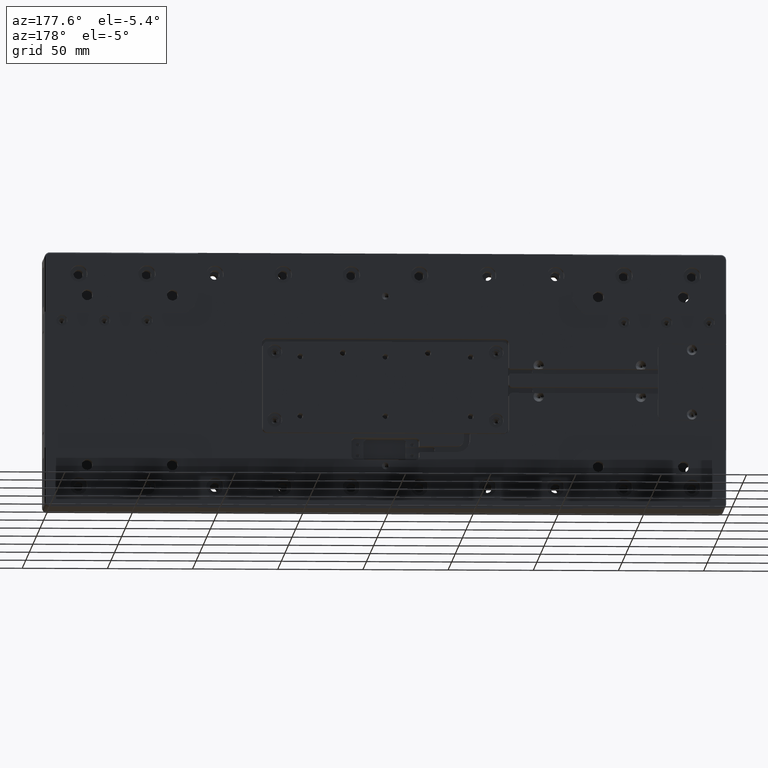
[diagram: clean part render]
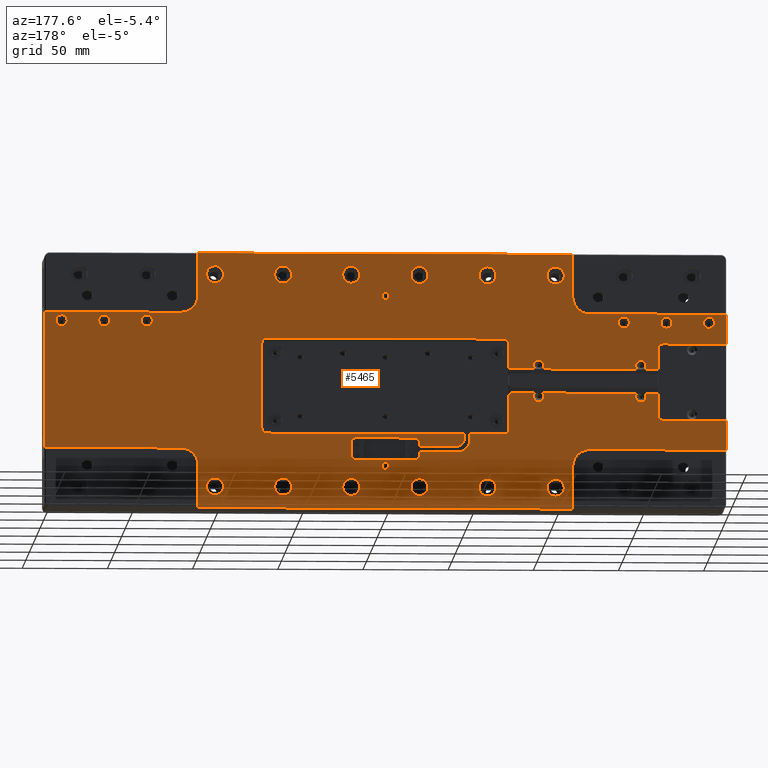
[diagram: same view with one face highlighted and labeled with its STEP entity id]
A machine part, auxiliary view. The second image highlights one B-rep face of the part: STEP entity #5465.
In plain terms, the highlighted planar face has unit normal (0, 1, 0).
Its self-contained STEP definition (entity closure, byte-faithful):
#92 = CARTESIAN_POINT ( 'NONE',  ( 17.50000000000000000, 14.50000000000000000, -46.50000000000000000 ) ) ;
#126 = CARTESIAN_POINT ( 'NONE',  ( 72.50000000000000000, 14.50000000000000000, -28.00000000000000355 ) ) ;
#204 = VERTEX_POINT ( 'NONE', #35539 ) ;
#243 = EDGE_LOOP ( 'NONE', ( #1602 ) ) ;
#285 = DIRECTION ( 'NONE',  ( -0.000000000000000000, -1.000000000000000000, -0.000000000000000000 ) ) ;
#316 = VERTEX_POINT ( 'NONE', #32314 ) ;
#326 = CARTESIAN_POINT ( 'NONE',  ( 0.000000000000000000, 14.50000000000000000, -31.00000000000000000 ) ) ;
#346 = LINE ( 'NONE', #34078, #22034 ) ;
#432 = EDGE_LOOP ( 'NONE', ( #4727 ) ) ;
#445 = CARTESIAN_POINT ( 'NONE',  ( 60.00000000000000000, 14.50000000000000178, -62.50000000000000000 ) ) ;
#454 = DIRECTION ( 'NONE',  ( -0.000000000000000000, -1.000000000000000000, -0.000000000000000000 ) ) ;
#462 = CARTESIAN_POINT ( 'NONE',  ( 140.0000000000000000, 14.49999999999999822, 35.00000000000000000 ) ) ;
#528 = VERTEX_POINT ( 'NONE', #13419 ) ;
#538 = LINE ( 'NONE', #25203, #8731 ) ;
#583 = CARTESIAN_POINT ( 'NONE',  ( -69.50000000000000000, 14.50000000000000000, -28.00000000000000000 ) ) ;
#651 = DIRECTION ( 'NONE',  ( 0.000000000000000000, 0.000000000000000000, 1.000000000000000000 ) ) ;
#682 = DIRECTION ( 'NONE',  ( -0.000000000000000000, -1.000000000000000000, -0.000000000000000000 ) ) ;
#685 = DIRECTION ( 'NONE',  ( -0.000000000000000000, -1.000000000000000000, -0.000000000000000000 ) ) ;
#780 = CIRCLE ( 'NONE', #5967, 10.00000000000000178 ) ;
#872 = VERTEX_POINT ( 'NONE', #6201 ) ;
#898 = FACE_BOUND ( 'NONE', #35328, .T. ) ;
#928 = CARTESIAN_POINT ( 'NONE',  ( -109.9999999999999858, 14.50000000004499867, -75.00000000000000000 ) ) ;
#984 = CARTESIAN_POINT ( 'NONE',  ( 100.0000000000000000, 14.50000000000000178, -62.50000000000000000 ) ) ;
#1030 = EDGE_CURVE ( 'NONE', #10047, #11987, #26122, .T. ) ;
#1077 = LINE ( 'NONE', #20409, #21368 ) ;
#1082 = CARTESIAN_POINT ( 'NONE',  ( 0.000000000000000000, 14.50000000000000000, 0.000000000000000000 ) ) ;
#1104 = ORIENTED_EDGE ( 'NONE', *, *, #26446, .T. ) ;
#1183 = CIRCLE ( 'NONE', #23773, 1.000000000000000000 ) ;
#1188 = EDGE_LOOP ( 'NONE', ( #21680 ) ) ;
#1193 = CARTESIAN_POINT ( 'NONE',  ( 20.00000000000000000, 14.50000000000000000, 0.000000000000000000 ) ) ;
#1230 = ORIENTED_EDGE ( 'NONE', *, *, #13583, .T. ) ;
#1290 = VECTOR ( 'NONE', #18855, 1000.000000000000000 ) ;
#1414 = EDGE_CURVE ( 'NONE', #21760, #16212, #37959, .T. ) ;
#1432 = ORIENTED_EDGE ( 'NONE', *, *, #21335, .T. ) ;
#1499 = ORIENTED_EDGE ( 'NONE', *, *, #35897, .T. ) ;
#1508 = VECTOR ( 'NONE', #37091, 1000.000000000000000 ) ;
#1533 = AXIS2_PLACEMENT_3D ( 'NONE', #21075, #29794, #14642 ) ;
#1602 = ORIENTED_EDGE ( 'NONE', *, *, #2476, .T. ) ;
#1733 = CARTESIAN_POINT ( 'NONE',  ( -140.0000000000000000, 14.49999999999999822, 38.25000000000000711 ) ) ;
#1743 = VERTEX_POINT ( 'NONE', #12286 ) ;
#1761 = EDGE_CURVE ( 'NONE', #9532, #38970, #31425, .T. ) ;
#1807 = EDGE_CURVE ( 'NONE', #26695, #17000, #12691, .T. ) ;
#1970 = CARTESIAN_POINT ( 'NONE',  ( -110.0000000000000000, 14.50000000000000000, 75.00000000000000000 ) ) ;
#2040 = VERTEX_POINT ( 'NONE', #33410 ) ;
#2129 = CARTESIAN_POINT ( 'NONE',  ( -49.75000000000000000, 14.50000000000000000, 0.000000000000000000 ) ) ;
#2205 = ORIENTED_EDGE ( 'NONE', *, *, #19507, .T. ) ;
#2247 = VERTEX_POINT ( 'NONE', #19440 ) ;
#2277 = EDGE_CURVE ( 'NONE', #19911, #19911, #14038, .T. ) ;
#2335 = DIRECTION ( 'NONE',  ( -1.000000000000000000, -0.000000000000000000, 0.000000000000000000 ) ) ;
#2360 = ORIENTED_EDGE ( 'NONE', *, *, #32648, .T. ) ;
#2476 = EDGE_CURVE ( 'NONE', #4581, #4581, #22429, .T. ) ;
#2498 = LINE ( 'NONE', #18636, #34707 ) ;
#2574 = CARTESIAN_POINT ( 'NONE',  ( -200.0000000000000284, 14.50000000000000000, -22.50000000000000355 ) ) ;
#2812 = VECTOR ( 'NONE', #6192, 1000.000000000000000 ) ;
#3003 = CARTESIAN_POINT ( 'NONE',  ( -17.50000000000000000, 14.50000000000000000, -44.00000000000000000 ) ) ;
#3007 = VECTOR ( 'NONE', #16376, 1000.000000000000000 ) ;
#3193 = AXIS2_PLACEMENT_3D ( 'NONE', #24342, #5978, #30207 ) ;
#3250 = DIRECTION ( 'NONE',  ( 1.000000000000000000, 0.000000000000000000, -0.000000000000000000 ) ) ;
#3284 = ORIENTED_EDGE ( 'NONE', *, *, #27691, .T. ) ;
#3301 = AXIS2_PLACEMENT_3D ( 'NONE', #19261, #682, #20218 ) ;
#3311 = EDGE_LOOP ( 'NONE', ( #17599, #4877, #28089, #8573, #35682, #28402, #20921, #13325, #15186, #37315, #32151, #11193, #35722, #38882, #15353, #14774, #13139, #17314, #22615, #28880, #28156, #2205, #13226, #7360, #22405, #25233, #4472, #17275, #2360, #28495, #15442, #1432, #1230, #31358, #39391, #34426, #7469, #16826, #9519, #14224, #1499, #25940, #28583, #9867, #36517, #35266, #27633, #17779, #34615, #15132, #5439, #1104, #11099, #31916, #39158, #13235, #30205, #18214, #8934, #37891 ) ) ;
#3369 = ORIENTED_EDGE ( 'NONE', *, *, #20462, .T. ) ;
#3433 = CARTESIAN_POINT ( 'NONE',  ( -46.25000000000000000, 14.50000000000000000, 0.000000000000000000 ) ) ;
#3509 = CARTESIAN_POINT ( 'NONE',  ( -49.75000000000000000, 14.50000000000000000, -34.00000000000000000 ) ) ;
#3625 = VECTOR ( 'NONE', #16425, 1000.000000000000000 ) ;
#3628 = DIRECTION ( 'NONE',  ( 1.000000000000000000, 0.000000000000000000, -0.000000000000000000 ) ) ;
#3655 = CIRCLE ( 'NONE', #30731, 2.500000000000002220 ) ;
#3969 = CARTESIAN_POINT ( 'NONE',  ( -20.00000000000000000, 14.50000000000000000, -38.25000000000000000 ) ) ;
#4149 = LINE ( 'NONE', #10405, #5760 ) ;
#4195 = EDGE_CURVE ( 'NONE', #39703, #39703, #29580, .T. ) ;
#4213 = CARTESIAN_POINT ( 'NONE',  ( -163.0000000000000000, 14.50000000000000000, 22.50000000000000000 ) ) ;
#4472 = ORIENTED_EDGE ( 'NONE', *, *, #39760, .T. ) ;
#4499 = AXIS2_PLACEMENT_3D ( 'NONE', #27389, #36862, #9200 ) ;
#4581 = VERTEX_POINT ( 'NONE', #16905 ) ;
#4595 = VECTOR ( 'NONE', #18468, 1000.000000000000000 ) ;
#4721 = DIRECTION ( 'NONE',  ( -0.000000000000000000, -1.000000000000000000, -0.000000000000000000 ) ) ;
#4727 = ORIENTED_EDGE ( 'NONE', *, *, #39074, .T. ) ;
#4741 = VERTEX_POINT ( 'NONE', #29094 ) ;
#4877 = ORIENTED_EDGE ( 'NONE', *, *, #29402, .T. ) ;
#4903 = EDGE_CURVE ( 'NONE', #27795, #27795, #36085, .T. ) ;
#4942 = DIRECTION ( 'NONE',  ( -0.000000000000000000, -1.000000000000000000, -0.000000000000000000 ) ) ;
#4968 = CARTESIAN_POINT ( 'NONE',  ( 0.000000000000000000, 14.50000000000000000, -40.00000000000000000 ) ) ;
#5031 = DIRECTION ( 'NONE',  ( -0.000000000000000000, 0.000000000000000000, -1.000000000000000000 ) ) ;
#5064 = AXIS2_PLACEMENT_3D ( 'NONE', #20689, #5374, #30197 ) ;
#5296 = CARTESIAN_POINT ( 'NONE',  ( 140.0000000000000000, 14.49999999999999822, 38.25000000000000711 ) ) ;
#5311 = CARTESIAN_POINT ( 'NONE',  ( -165.0000000000000000, 14.49999999999999822, 35.00000000000000000 ) ) ;
#5374 = DIRECTION ( 'NONE',  ( -0.000000000000000000, -1.000000000000000000, -0.000000000000000000 ) ) ;
#5394 = CARTESIAN_POINT ( 'NONE',  ( 69.50000000000000000, 14.50000000000000000, 25.00000000000000000 ) ) ;
#5439 = ORIENTED_EDGE ( 'NONE', *, *, #16456, .T. ) ;
#5459 = CARTESIAN_POINT ( 'NONE',  ( 0.000000000000000000, 14.50000000000000000, -50.00000000000000000 ) ) ;
#5465 = ADVANCED_FACE ( 'NONE', ( #28592, #9210, #34451, #13228, #898, #21705, #36871, #24943, #18676, #27996, #21520, #12631, #9594, #34232, #37252, #6580, #18889, #31227, #22118, #31411, #16458 ), #32610, .T. ) ;
#5528 = VERTEX_POINT ( 'NONE', #38450 ) ;
#5652 = CARTESIAN_POINT ( 'NONE',  ( 109.9999999999999858, 14.50000000004499867, 75.00000000000000000 ) ) ;
#5667 = DIRECTION ( 'NONE',  ( -1.000000000000000000, -0.000000000000000000, 0.000000000000000000 ) ) ;
#5668 = CARTESIAN_POINT ( 'NONE',  ( 200.0000000000000000, 14.50000000000000000, 40.00000000000000000 ) ) ;
#5760 = VECTOR ( 'NONE', #28796, 1000.000000000000000 ) ;
#5809 = CIRCLE ( 'NONE', #3193, 3.100000000000000533 ) ;
#5868 = VECTOR ( 'NONE', #25770, 1000.000000000000000 ) ;
#5871 = CARTESIAN_POINT ( 'NONE',  ( 0.000000000000000000, 14.50000000000000000, -40.00000000000000000 ) ) ;
#5881 = VERTEX_POINT ( 'NONE', #14035 ) ;
#5884 = DIRECTION ( 'NONE',  ( -0.000000000000000000, -1.000000000000000000, -0.000000000000000000 ) ) ;
#5967 = AXIS2_PLACEMENT_3D ( 'NONE', #34213, #15441, #24743 ) ;
#5978 = DIRECTION ( 'NONE',  ( -0.000000000000000000, -1.000000000000000000, -0.000000000000000000 ) ) ;
#6000 = CIRCLE ( 'NONE', #32425, 3.250000000000002665 ) ;
#6032 = VERTEX_POINT ( 'NONE', #3509 ) ;
#6082 = LINE ( 'NONE', #12314, #39542 ) ;
#6174 = CARTESIAN_POINT ( 'NONE',  ( 0.000000000000000000, 14.50000000000000000, 75.00000000000000000 ) ) ;
#6191 = CARTESIAN_POINT ( 'NONE',  ( 0.000000000000000000, 14.50000000000000000, -48.00000000000000000 ) ) ;
#6192 = DIRECTION ( 'NONE',  ( 1.000000000000000000, 0.000000000000000000, -0.000000000000000000 ) ) ;
#6201 = CARTESIAN_POINT ( 'NONE',  ( -60.00000000000000000, 14.50000000000000178, -57.50000000000000000 ) ) ;
#6205 = EDGE_LOOP ( 'NONE', ( #19707 ) ) ;
#6251 = EDGE_CURVE ( 'NONE', #16212, #14611, #20679, .T. ) ;
#6373 = DIRECTION ( 'NONE',  ( 0.000000000000000000, 0.000000000000000000, 1.000000000000000000 ) ) ;
#6489 = CARTESIAN_POINT ( 'NONE',  ( 0.000000000000000000, 14.50000000000000000, -31.00000000000000000 ) ) ;
#6580 = FACE_BOUND ( 'NONE', #1188, .T. ) ;
#6588 = CIRCLE ( 'NONE', #29159, 2.999999999999999112 ) ;
#6627 = CARTESIAN_POINT ( 'NONE',  ( -42.00000000000000000, 14.50000000000000000, -41.75000000000000000 ) ) ;
#6704 = CIRCLE ( 'NONE', #29282, 4.999999999999997335 ) ;
#6794 = CARTESIAN_POINT ( 'NONE',  ( 110.0000000000000000, 14.50000000000000000, 0.000000000000000000 ) ) ;
#6817 = LINE ( 'NONE', #22342, #18012 ) ;
#6829 = DIRECTION ( 'NONE',  ( 1.000000000000000000, 0.000000000000000000, -0.000000000000000000 ) ) ;
#6956 = VERTEX_POINT ( 'NONE', #9428 ) ;
#6964 = CARTESIAN_POINT ( 'NONE',  ( -72.50000000000001421, 14.50000000000000000, -28.00000000000000000 ) ) ;
#6973 = VERTEX_POINT ( 'NONE', #126 ) ;
#6976 = EDGE_CURVE ( 'NONE', #13788, #316, #15889, .T. ) ;
#6980 = AXIS2_PLACEMENT_3D ( 'NONE', #30183, #4942, #23918 ) ;
#7181 = VERTEX_POINT ( 'NONE', #38474 ) ;
#7255 = DIRECTION ( 'NONE',  ( 0.000000000000000000, -0.000000000000000000, 1.000000000000000000 ) ) ;
#7284 = CARTESIAN_POINT ( 'NONE',  ( 165.0000000000000000, 14.49999999999999822, 38.25000000000000711 ) ) ;
#7314 = VECTOR ( 'NONE', #15355, 1000.000000000000000 ) ;
#7360 = ORIENTED_EDGE ( 'NONE', *, *, #11004, .T. ) ;
#7448 = DIRECTION ( 'NONE',  ( -1.000000000000000000, -0.000000000000000000, 0.000000000000000000 ) ) ;
#7469 = ORIENTED_EDGE ( 'NONE', *, *, #6976, .T. ) ;
#7490 = EDGE_CURVE ( 'NONE', #5881, #4741, #780, .T. ) ;
#7547 = CARTESIAN_POINT ( 'NONE',  ( -200.0000000000000000, 14.50000000000000000, 0.000000000000000000 ) ) ;
#7623 = CARTESIAN_POINT ( 'NONE',  ( -72.50000000000000000, 14.50000000000000000, 0.000000000000000000 ) ) ;
#7634 = CARTESIAN_POINT ( 'NONE',  ( 20.00000000000000000, 14.50000000000000000, -36.00000000000000711 ) ) ;
#7652 = EDGE_CURVE ( 'NONE', #22449, #37892, #20134, .T. ) ;
#7689 = VERTEX_POINT ( 'NONE', #16627 ) ;
#7823 = AXIS2_PLACEMENT_3D ( 'NONE', #21022, #5884, #11743 ) ;
#7885 = VECTOR ( 'NONE', #14293, 1000.000000000000000 ) ;
#7893 = CARTESIAN_POINT ( 'NONE',  ( 17.50000000000000000, 14.50000000000000000, -33.50000000000000000 ) ) ;
#7943 = DIRECTION ( 'NONE',  ( 0.000000000000000000, 0.000000000000000000, 1.000000000000000000 ) ) ;
#8119 = VERTEX_POINT ( 'NONE', #23632 ) ;
#8125 = EDGE_LOOP ( 'NONE', ( #22932 ) ) ;
#8136 = DIRECTION ( 'NONE',  ( -0.000000000000000000, -1.000000000000000000, -0.000000000000000000 ) ) ;
#8204 = CARTESIAN_POINT ( 'NONE',  ( 17.50000000000000000, 14.50000000000000000, -44.00000000000000000 ) ) ;
#8243 = LINE ( 'NONE', #38138, #27271 ) ;
#8307 = VERTEX_POINT ( 'NONE', #928 ) ;
#8321 = VERTEX_POINT ( 'NONE', #5296 ) ;
#8509 = LINE ( 'NONE', #5871, #32301 ) ;
#8573 = ORIENTED_EDGE ( 'NONE', *, *, #7652, .T. ) ;
#8618 = LINE ( 'NONE', #4968, #24713 ) ;
#8630 = DIRECTION ( 'NONE',  ( -1.000000000000000000, -0.000000000000000000, 0.000000000000000000 ) ) ;
#8644 = EDGE_CURVE ( 'NONE', #23513, #18130, #39686, .T. ) ;
#8688 = DIRECTION ( 'NONE',  ( 0.000000000000000000, 0.000000000000000000, 1.000000000000000000 ) ) ;
#8731 = VECTOR ( 'NONE', #37729, 1000.000000000000000 ) ;
#8834 = EDGE_CURVE ( 'NONE', #30871, #26695, #23084, .T. ) ;
#8934 = ORIENTED_EDGE ( 'NONE', *, *, #25437, .T. ) ;
#8975 = EDGE_CURVE ( 'NONE', #37434, #16149, #27242, .T. ) ;
#8985 = DIRECTION ( 'NONE',  ( -0.000000000000000000, -1.000000000000000000, -0.000000000000000000 ) ) ;
#9023 = CARTESIAN_POINT ( 'NONE',  ( 72.50000000000001421, 14.50000000000000000, 22.00000000000000000 ) ) ;
#9164 = VERTEX_POINT ( 'NONE', #34408 ) ;
#9186 = DIRECTION ( 'NONE',  ( 0.000000000000000000, 0.000000000000000000, 1.000000000000000000 ) ) ;
#9190 = AXIS2_PLACEMENT_3D ( 'NONE', #22893, #22687, #25929 ) ;
#9196 = DIRECTION ( 'NONE',  ( -0.000000000000000000, 0.000000000000000000, -1.000000000000000000 ) ) ;
#9200 = DIRECTION ( 'NONE',  ( 0.000000000000000000, 0.000000000000000000, 1.000000000000000000 ) ) ;
#9206 = CARTESIAN_POINT ( 'NONE',  ( -160.0000000000000000, 14.50000000000000000, 19.50000000000000000 ) ) ;
#9210 = FACE_BOUND ( 'NONE', #243, .T. ) ;
#9279 = DIRECTION ( 'NONE',  ( 0.000000000000000000, 1.000000000000000000, 0.000000000000000000 ) ) ;
#9369 = VERTEX_POINT ( 'NONE', #18174 ) ;
#9428 = CARTESIAN_POINT ( 'NONE',  ( -152.3685438564826882, 14.50000000000000000, -6.750000000000000000 ) ) ;
#9519 = ORIENTED_EDGE ( 'NONE', *, *, #13940, .T. ) ;
#9532 = VERTEX_POINT ( 'NONE', #21790 ) ;
#9578 = EDGE_CURVE ( 'NONE', #4741, #11436, #6082, .T. ) ;
#9594 = FACE_BOUND ( 'NONE', #6205, .T. ) ;
#9599 = VECTOR ( 'NONE', #3250, 1000.000000000000000 ) ;
#9699 = VERTEX_POINT ( 'NONE', #37755 ) ;
#9784 = LINE ( 'NONE', #18465, #37941 ) ;
#9810 = DIRECTION ( 'NONE',  ( 0.000000000000000000, 0.000000000000000000, 1.000000000000000000 ) ) ;
#9867 = ORIENTED_EDGE ( 'NONE', *, *, #17910, .T. ) ;
#9962 = CARTESIAN_POINT ( 'NONE',  ( 0.000000000000000000, 14.50000000000000000, 52.00000000000000711 ) ) ;
#9990 = VECTOR ( 'NONE', #31287, 1000.000000000000000 ) ;
#10031 = CARTESIAN_POINT ( 'NONE',  ( 0.000000000000000000, 14.50000000000000000, -6.750000000000000000 ) ) ;
#10047 = VERTEX_POINT ( 'NONE', #6627 ) ;
#10129 = ORIENTED_EDGE ( 'NONE', *, *, #2277, .T. ) ;
#10188 = VERTEX_POINT ( 'NONE', #32043 ) ;
#10309 = CARTESIAN_POINT ( 'NONE',  ( 190.0000000000000000, 14.49999999999999822, 38.25000000000000711 ) ) ;
#10405 = CARTESIAN_POINT ( 'NONE',  ( -110.0000000000000000, 14.50000000000000000, 0.000000000000000000 ) ) ;
#10545 = CARTESIAN_POINT ( 'NONE',  ( -160.0000000000000000, 14.50000000000000000, -19.50000000000000000 ) ) ;
#10572 = AXIS2_PLACEMENT_3D ( 'NONE', #19959, #34934, #16744 ) ;
#10591 = DIRECTION ( 'NONE',  ( 0.000000000000000000, -0.000000000000000000, 1.000000000000000000 ) ) ;
#10609 = CARTESIAN_POINT ( 'NONE',  ( -69.50000000000000000, 14.50000000000000000, -31.00000000000000000 ) ) ;
#10675 = DIRECTION ( 'NONE',  ( 0.000000000000000000, -0.000000000000000000, 1.000000000000000000 ) ) ;
#10756 = CARTESIAN_POINT ( 'NONE',  ( 17.50000000000000000, 14.50000000000000000, -36.00000000000000711 ) ) ;
#10761 = DIRECTION ( 'NONE',  ( -0.000000000000000000, -1.000000000000000000, -0.000000000000000000 ) ) ;
#10956 = DIRECTION ( 'NONE',  ( 0.000000000000000000, 0.000000000000000000, 1.000000000000000000 ) ) ;
#10970 = CARTESIAN_POINT ( 'NONE',  ( -20.00000000000000000, 14.50000000000000178, 62.50000000000000000 ) ) ;
#11004 = EDGE_CURVE ( 'NONE', #21603, #30871, #8618, .T. ) ;
#11076 = CARTESIAN_POINT ( 'NONE',  ( 110.0000000000000000, 14.49999999999999822, -50.00000000000000000 ) ) ;
#11099 = ORIENTED_EDGE ( 'NONE', *, *, #14488, .T. ) ;
#11104 = LINE ( 'NONE', #20374, #22628 ) ;
#11120 = AXIS2_PLACEMENT_3D ( 'NONE', #10970, #4721, #13393 ) ;
#11167 = VERTEX_POINT ( 'NONE', #9206 ) ;
#11193 = ORIENTED_EDGE ( 'NONE', *, *, #29657, .T. ) ;
#11239 = EDGE_CURVE ( 'NONE', #37413, #37413, #24733, .T. ) ;
#11288 = EDGE_CURVE ( 'NONE', #6973, #25500, #38791, .T. ) ;
#11325 = EDGE_CURVE ( 'NONE', #11436, #20112, #1077, .T. ) ;
#11410 = EDGE_LOOP ( 'NONE', ( #33751 ) ) ;
#11436 = VERTEX_POINT ( 'NONE', #5668 ) ;
#11460 = DIRECTION ( 'NONE',  ( 0.000000000000000000, -0.000000000000000000, 1.000000000000000000 ) ) ;
#11487 = AXIS2_PLACEMENT_3D ( 'NONE', #5311, #29960, #10956 ) ;
#11640 = EDGE_CURVE ( 'NONE', #20556, #7181, #27846, .T. ) ;
#11743 = DIRECTION ( 'NONE',  ( 0.000000000000000000, 0.000000000000000000, 1.000000000000000000 ) ) ;
#11779 = CIRCLE ( 'NONE', #22092, 3.100000000000000533 ) ;
#11850 = CARTESIAN_POINT ( 'NONE',  ( 60.00000000000000000, 14.50000000000000178, -57.50000000000000000 ) ) ;
#11910 = EDGE_CURVE ( 'NONE', #9164, #9164, #38821, .T. ) ;
#11956 = EDGE_CURVE ( 'NONE', #9369, #20556, #346, .T. ) ;
#11987 = VERTEX_POINT ( 'NONE', #15308 ) ;
#12015 = CARTESIAN_POINT ( 'NONE',  ( -17.50000000000000000, 14.50000000000000000, -36.00000000000000711 ) ) ;
#12091 = CIRCLE ( 'NONE', #15332, 4.250000000000000000 ) ;
#12154 = DIRECTION ( 'NONE',  ( -0.000000000000000000, -1.000000000000000000, -0.000000000000000000 ) ) ;
#12169 = VERTEX_POINT ( 'NONE', #33059 ) ;
#12286 = CARTESIAN_POINT ( 'NONE',  ( -92.36854385646635990, 14.50000000000000000, 7.500000000001132427 ) ) ;
#12292 = VERTEX_POINT ( 'NONE', #34698 ) ;
#12305 = VERTEX_POINT ( 'NONE', #35882 ) ;
#12314 = CARTESIAN_POINT ( 'NONE',  ( 0.000000000000000000, 14.50000000000000000, 40.00000000000000000 ) ) ;
#12466 = EDGE_CURVE ( 'NONE', #18440, #18440, #20797, .T. ) ;
#12606 = EDGE_LOOP ( 'NONE', ( #30624 ) ) ;
#12631 = FACE_BOUND ( 'NONE', #31722, .T. ) ;
#12656 = DIRECTION ( 'NONE',  ( 1.000000000000000000, 0.000000000000000000, -0.000000000000000000 ) ) ;
#12691 = LINE ( 'NONE', #15928, #23043 ) ;
#12781 = DIRECTION ( 'NONE',  ( -0.000000000000000000, -1.000000000000000000, -0.000000000000000000 ) ) ;
#12868 = AXIS2_PLACEMENT_3D ( 'NONE', #5459, #17756, #39362 ) ;
#12905 = DIRECTION ( 'NONE',  ( 0.000000000000000000, -1.000000000000000000, 0.000000000000000000 ) ) ;
#12924 = CIRCLE ( 'NONE', #14242, 3.250000000000002665 ) ;
#12942 = LINE ( 'NONE', #31338, #37398 ) ;
#12993 = CARTESIAN_POINT ( 'NONE',  ( -140.0000000000000000, 14.49999999999999822, 35.00000000000000000 ) ) ;
#13125 = DIRECTION ( 'NONE',  ( -0.000000000000000000, -1.000000000000000000, -0.000000000000000000 ) ) ;
#13139 = ORIENTED_EDGE ( 'NONE', *, *, #11325, .T. ) ;
#13225 = CARTESIAN_POINT ( 'NONE',  ( 72.50000000000000000, 14.50000000000000000, 0.000000000000000000 ) ) ;
#13226 = ORIENTED_EDGE ( 'NONE', *, *, #34047, .T. ) ;
#13228 = FACE_BOUND ( 'NONE', #14669, .T. ) ;
#13235 = ORIENTED_EDGE ( 'NONE', *, *, #19797, .T. ) ;
#13301 = CARTESIAN_POINT ( 'NONE',  ( -160.0000000000000000, 14.50000000000000000, 0.000000000000000000 ) ) ;
#13325 = ORIENTED_EDGE ( 'NONE', *, *, #13431, .T. ) ;
#13393 = DIRECTION ( 'NONE',  ( 0.000000000000000000, 0.000000000000000000, 1.000000000000000000 ) ) ;
#13412 = DIRECTION ( 'NONE',  ( 0.000000000000000000, 1.000000000000000000, 0.000000000000000000 ) ) ;
#13419 = CARTESIAN_POINT ( 'NONE',  ( 109.9999999999999858, 14.50000000000000000, -75.00000000000000000 ) ) ;
#13431 = EDGE_CURVE ( 'NONE', #32308, #5528, #27405, .T. ) ;
#13583 = EDGE_CURVE ( 'NONE', #12305, #9532, #22131, .T. ) ;
#13592 = VERTEX_POINT ( 'NONE', #21332 ) ;
#13604 = VECTOR ( 'NONE', #22494, 1000.000000000000000 ) ;
#13637 = EDGE_CURVE ( 'NONE', #30753, #5881, #27587, .T. ) ;
#13647 = EDGE_CURVE ( 'NONE', #11167, #32308, #16998, .T. ) ;
#13648 = AXIS2_PLACEMENT_3D ( 'NONE', #18940, #21568, #19121 ) ;
#13681 = CIRCLE ( 'NONE', #36258, 10.00000000000000178 ) ;
#13749 = DIRECTION ( 'NONE',  ( 0.000000000000000000, 0.000000000000000000, 1.000000000000000000 ) ) ;
#13788 = VERTEX_POINT ( 'NONE', #10609 ) ;
#13823 = CARTESIAN_POINT ( 'NONE',  ( -163.0000000000000000, 14.50000000000000000, -22.50000000000000000 ) ) ;
#13854 = CIRCLE ( 'NONE', #29978, 5.000000000000004441 ) ;
#13881 = EDGE_CURVE ( 'NONE', #17202, #17202, #29300, .T. ) ;
#13940 = EDGE_CURVE ( 'NONE', #6032, #10047, #20511, .T. ) ;
#14019 = EDGE_CURVE ( 'NONE', #38970, #35945, #2498, .T. ) ;
#14035 = CARTESIAN_POINT ( 'NONE',  ( 110.0000000000000000, 14.49999999999999822, 50.00000000000000000 ) ) ;
#14038 = CIRCLE ( 'NONE', #36598, 3.250000000000002665 ) ;
#14224 = ORIENTED_EDGE ( 'NONE', *, *, #1030, .T. ) ;
#14242 = AXIS2_PLACEMENT_3D ( 'NONE', #30295, #17769, #26468 ) ;
#14293 = DIRECTION ( 'NONE',  ( 1.000000000000000000, 0.000000000000000000, -0.000000000000000000 ) ) ;
#14313 = DIRECTION ( 'NONE',  ( 0.000000000000000000, 0.000000000000000000, 1.000000000000000000 ) ) ;
#14434 = DIRECTION ( 'NONE',  ( 0.000000000000000000, 0.000000000000000000, 1.000000000000000000 ) ) ;
#14441 = VECTOR ( 'NONE', #21403, 1000.000000000000000 ) ;
#14488 = EDGE_CURVE ( 'NONE', #7689, #31456, #34366, .T. ) ;
#14521 = LINE ( 'NONE', #14701, #20579 ) ;
#14590 = VERTEX_POINT ( 'NONE', #26499 ) ;
#14611 = VERTEX_POINT ( 'NONE', #7893 ) ;
#14642 = DIRECTION ( 'NONE',  ( 0.000000000000000000, 0.000000000000000000, 1.000000000000000000 ) ) ;
#14660 = CARTESIAN_POINT ( 'NONE',  ( 0.000000000000000000, 14.50000000000000000, -46.50000000000000000 ) ) ;
#14669 = EDGE_LOOP ( 'NONE', ( #23090 ) ) ;
#14681 = CIRCLE ( 'NONE', #38529, 2.999999999999999112 ) ;
#14701 = CARTESIAN_POINT ( 'NONE',  ( -160.0000000000000000, 14.50000000000000000, 0.000000000000000000 ) ) ;
#14761 = CARTESIAN_POINT ( 'NONE',  ( 0.000000000000000000, 14.50000000000000000, 25.00000000000000000 ) ) ;
#14774 = ORIENTED_EDGE ( 'NONE', *, *, #9578, .T. ) ;
#14816 = EDGE_CURVE ( 'NONE', #34730, #23513, #20564, .T. ) ;
#14988 = EDGE_LOOP ( 'NONE', ( #15957 ) ) ;
#15076 = LINE ( 'NONE', #16255, #13604 ) ;
#15132 = ORIENTED_EDGE ( 'NONE', *, *, #21015, .T. ) ;
#15175 = LINE ( 'NONE', #33161, #7314 ) ;
#15186 = ORIENTED_EDGE ( 'NONE', *, *, #29197, .T. ) ;
#15191 = CARTESIAN_POINT ( 'NONE',  ( 60.00000000000000000, 14.50000000000000178, 67.50000000000000000 ) ) ;
#15308 = CARTESIAN_POINT ( 'NONE',  ( -20.00000000000000000, 14.50000000000000000, -41.75000000000000000 ) ) ;
#15332 = AXIS2_PLACEMENT_3D ( 'NONE', #16081, #19106, #19298 ) ;
#15353 = ORIENTED_EDGE ( 'NONE', *, *, #7490, .T. ) ;
#15354 = DIRECTION ( 'NONE',  ( 0.000000000000000000, 0.000000000000000000, 1.000000000000000000 ) ) ;
#15355 = DIRECTION ( 'NONE',  ( -1.000000000000000000, -0.000000000000000000, 0.000000000000000000 ) ) ;
#15441 = DIRECTION ( 'NONE',  ( -0.000000000000000000, -1.000000000000000000, -0.000000000000000000 ) ) ;
#15442 = ORIENTED_EDGE ( 'NONE', *, *, #23195, .T. ) ;
#15483 = CARTESIAN_POINT ( 'NONE',  ( 20.00000000000000000, 14.50000000000000178, 67.50000000000000000 ) ) ;
#15543 = CIRCLE ( 'NONE', #35549, 2.999999999999999112 ) ;
#15568 = EDGE_CURVE ( 'NONE', #14590, #14590, #36002, .T. ) ;
#15578 = EDGE_CURVE ( 'NONE', #316, #6032, #17680, .T. ) ;
#15610 = CARTESIAN_POINT ( 'NONE',  ( 20.00000000000000000, 14.50000000000000000, -44.00000000000000000 ) ) ;
#15613 = EDGE_LOOP ( 'NONE', ( #19740 ) ) ;
#15676 = EDGE_CURVE ( 'NONE', #26894, #26894, #16018, .T. ) ;
#15732 = CARTESIAN_POINT ( 'NONE',  ( -160.0000000000000000, 14.50000000000000000, 7.500000000000000000 ) ) ;
#15842 = CARTESIAN_POINT ( 'NONE',  ( 120.0000000000000000, 14.49999999999999822, -40.00000000000000000 ) ) ;
#15889 = LINE ( 'NONE', #326, #21394 ) ;
#15902 = CARTESIAN_POINT ( 'NONE',  ( -150.0000000000000000, 14.50000000000000000, -8.750000000000000000 ) ) ;
#15928 = CARTESIAN_POINT ( 'NONE',  ( 0.000000000000000000, 14.50000000000000000, -22.50000000000000000 ) ) ;
#15957 = ORIENTED_EDGE ( 'NONE', *, *, #26950, .T. ) ;
#15973 = VERTEX_POINT ( 'NONE', #31527 ) ;
#15984 = EDGE_CURVE ( 'NONE', #8119, #29310, #1183, .T. ) ;
#15993 = CIRCLE ( 'NONE', #32754, 2.500000000000002220 ) ;
#16018 = CIRCLE ( 'NONE', #38582, 5.000000000000004441 ) ;
#16081 = CARTESIAN_POINT ( 'NONE',  ( -42.00000000000000000, 14.50000000000000000, -34.00000000000000000 ) ) ;
#16086 = VERTEX_POINT ( 'NONE', #34526 ) ;
#16149 = VERTEX_POINT ( 'NONE', #11076 ) ;
#16176 = DIRECTION ( 'NONE',  ( -1.000000000000000000, -0.000000000000000000, 0.000000000000000000 ) ) ;
#16212 = VERTEX_POINT ( 'NONE', #7634 ) ;
#16255 = CARTESIAN_POINT ( 'NONE',  ( -20.00000000000000000, 14.50000000000000000, 0.000000000000000000 ) ) ;
#16376 = DIRECTION ( 'NONE',  ( 0.000000000000000000, -0.000000000000000000, 1.000000000000000000 ) ) ;
#16425 = DIRECTION ( 'NONE',  ( 1.000000000000000000, 0.000000000000000000, -0.000000000000000000 ) ) ;
#16456 = EDGE_CURVE ( 'NONE', #2247, #204, #12091, .T. ) ;
#16458 = FACE_OUTER_BOUND ( 'NONE', #3311, .T. ) ;
#16486 = VERTEX_POINT ( 'NONE', #25388 ) ;
#16609 = CARTESIAN_POINT ( 'NONE',  ( 0.000000000000000000, 14.50000000000000000, -41.75000000000000000 ) ) ;
#16627 = CARTESIAN_POINT ( 'NONE',  ( -46.24999999999999289, 14.50000000000000000, -31.00000000000000000 ) ) ;
#16741 = DIRECTION ( 'NONE',  ( -0.000000000000000000, -1.000000000000000000, -0.000000000000000000 ) ) ;
#16744 = DIRECTION ( 'NONE',  ( 0.000000000000000000, 0.000000000000000000, 1.000000000000000000 ) ) ;
#16814 = EDGE_CURVE ( 'NONE', #36812, #2040, #3655, .T. ) ;
#16826 = ORIENTED_EDGE ( 'NONE', *, *, #15578, .T. ) ;
#16846 = DIRECTION ( 'NONE',  ( 0.000000000000000000, -0.000000000000000000, 1.000000000000000000 ) ) ;
#16905 = CARTESIAN_POINT ( 'NONE',  ( -165.0000000000000000, 14.49999999999999822, 38.25000000000000711 ) ) ;
#16928 = EDGE_CURVE ( 'NONE', #8321, #8321, #38501, .T. ) ;
#16998 = CIRCLE ( 'NONE', #39570, 2.999999999999999112 ) ;
#17000 = VERTEX_POINT ( 'NONE', #13823 ) ;
#17202 = VERTEX_POINT ( 'NONE', #29137 ) ;
#17275 = ORIENTED_EDGE ( 'NONE', *, *, #32332, .T. ) ;
#17299 = EDGE_CURVE ( 'NONE', #9699, #10188, #14681, .T. ) ;
#17314 = ORIENTED_EDGE ( 'NONE', *, *, #22129, .T. ) ;
#17599 = ORIENTED_EDGE ( 'NONE', *, *, #29200, .T. ) ;
#17680 = LINE ( 'NONE', #2129, #34732 ) ;
#17746 = CARTESIAN_POINT ( 'NONE',  ( -163.0000000000000000, 14.50000000000000000, -19.50000000000000000 ) ) ;
#17756 = DIRECTION ( 'NONE',  ( -0.000000000000000000, -1.000000000000000000, -0.000000000000000000 ) ) ;
#17769 = DIRECTION ( 'NONE',  ( -0.000000000000000000, -1.000000000000000000, -0.000000000000000000 ) ) ;
#17779 = ORIENTED_EDGE ( 'NONE', *, *, #16814, .T. ) ;
#17910 = EDGE_CURVE ( 'NONE', #18130, #21760, #15993, .T. ) ;
#17932 = DIRECTION ( 'NONE',  ( -0.000000000000000000, -1.000000000000000000, -0.000000000000000000 ) ) ;
#18005 = VERTEX_POINT ( 'NONE', #20922 ) ;
#18012 = VECTOR ( 'NONE', #28415, 1000.000000000000000 ) ;
#18090 = CARTESIAN_POINT ( 'NONE',  ( 0.000000000000000000, 14.50000000000000000, 22.50000000000000000 ) ) ;
#18130 = VERTEX_POINT ( 'NONE', #92 ) ;
#18174 = CARTESIAN_POINT ( 'NONE',  ( -200.0000000000000000, 14.50000000000000000, 40.00000000000000000 ) ) ;
#18207 = VERTEX_POINT ( 'NONE', #15191 ) ;
#18214 = ORIENTED_EDGE ( 'NONE', *, *, #17299, .T. ) ;
#18440 = VERTEX_POINT ( 'NONE', #28338 ) ;
#18465 = CARTESIAN_POINT ( 'NONE',  ( -20.00000000000000000, 14.50000000000000000, 0.000000000000000000 ) ) ;
#18468 = DIRECTION ( 'NONE',  ( 1.000000000000000000, 0.000000000000000000, -0.000000000000000000 ) ) ;
#18568 = CARTESIAN_POINT ( 'NONE',  ( -17.50000000000000000, 14.50000000000000000, -33.50000000000000000 ) ) ;
#18636 = CARTESIAN_POINT ( 'NONE',  ( -72.50000000000000000, 14.50000000000000000, 0.000000000000000000 ) ) ;
#18676 = FACE_BOUND ( 'NONE', #27306, .T. ) ;
#18689 = CARTESIAN_POINT ( 'NONE',  ( -163.0000000000000000, 14.50000000000000000, 19.50000000000000000 ) ) ;
#18855 = DIRECTION ( 'NONE',  ( -1.000000000000000000, -0.000000000000000000, 0.000000000000000000 ) ) ;
#18889 = FACE_BOUND ( 'NONE', #11410, .T. ) ;
#18891 = DIRECTION ( 'NONE',  ( 0.000000000000000000, 0.000000000000000000, 1.000000000000000000 ) ) ;
#18904 = VECTOR ( 'NONE', #24339, 1000.000000000000000 ) ;
#18940 = CARTESIAN_POINT ( 'NONE',  ( -100.0000000000000000, 14.50000000000000178, -62.50000000000000000 ) ) ;
#19106 = DIRECTION ( 'NONE',  ( 0.000000000000000000, 1.000000000000000000, 0.000000000000000000 ) ) ;
#19121 = DIRECTION ( 'NONE',  ( 0.000000000000000000, 0.000000000000000000, 1.000000000000000000 ) ) ;
#19261 = CARTESIAN_POINT ( 'NONE',  ( 0.000000000000000000, 14.50000000000000000, 50.00000000000000000 ) ) ;
#19266 = CARTESIAN_POINT ( 'NONE',  ( -60.00000000000000000, 14.50000000000000178, -62.50000000000000000 ) ) ;
#19293 = VERTEX_POINT ( 'NONE', #24628 ) ;
#19298 = DIRECTION ( 'NONE',  ( 0.000000000000000000, 0.000000000000000000, 1.000000000000000000 ) ) ;
#19350 = CARTESIAN_POINT ( 'NONE',  ( -73.50000000000000000, 14.49999999999999822, 8.500000000000000000 ) ) ;
#19440 = CARTESIAN_POINT ( 'NONE',  ( -42.00000000000000000, 14.50000000000000000, -38.25000000000000711 ) ) ;
#19507 = EDGE_CURVE ( 'NONE', #8307, #16486, #22975, .T. ) ;
#19561 = EDGE_CURVE ( 'NONE', #39954, #11167, #14521, .T. ) ;
#19565 = CARTESIAN_POINT ( 'NONE',  ( -120.0000000000000000, 14.49999999999999822, -50.00000000000000000 ) ) ;
#19598 = CARTESIAN_POINT ( 'NONE',  ( 60.00000000000000000, 14.50000000000000178, 62.50000000000000000 ) ) ;
#19707 = ORIENTED_EDGE ( 'NONE', *, *, #23765, .T. ) ;
#19737 = DIRECTION ( 'NONE',  ( -0.000000000000000000, 0.000000000000000000, -1.000000000000000000 ) ) ;
#19740 = ORIENTED_EDGE ( 'NONE', *, *, #13881, .T. ) ;
#19797 = EDGE_CURVE ( 'NONE', #25500, #39015, #34802, .T. ) ;
#19911 = VERTEX_POINT ( 'NONE', #1733 ) ;
#19959 = CARTESIAN_POINT ( 'NONE',  ( 190.0000000000000000, 14.49999999999999822, 35.00000000000000000 ) ) ;
#20112 = VERTEX_POINT ( 'NONE', #36462 ) ;
#20134 = CIRCLE ( 'NONE', #9190, 3.100000000000000533 ) ;
#20152 = AXIS2_PLACEMENT_3D ( 'NONE', #19598, #22619, #13749 ) ;
#20217 = VECTOR ( 'NONE', #10591, 1000.000000000000000 ) ;
#20218 = DIRECTION ( 'NONE',  ( 0.000000000000000000, 0.000000000000000000, 1.000000000000000000 ) ) ;
#20374 = CARTESIAN_POINT ( 'NONE',  ( 110.0000000000000000, 14.50000000000000000, 0.000000000000000000 ) ) ;
#20409 = CARTESIAN_POINT ( 'NONE',  ( 200.0000000000000000, 14.50000000000000000, 0.000000000000000000 ) ) ;
#20455 = CARTESIAN_POINT ( 'NONE',  ( -120.0000000000000000, 14.49999999999999822, -40.00000000000000000 ) ) ;
#20462 = EDGE_CURVE ( 'NONE', #22614, #22614, #12924, .T. ) ;
#20511 = CIRCLE ( 'NONE', #6980, 7.750000000000000000 ) ;
#20556 = VERTEX_POINT ( 'NONE', #30699 ) ;
#20564 = CIRCLE ( 'NONE', #32835, 2.500000000000002220 ) ;
#20569 = ORIENTED_EDGE ( 'NONE', *, *, #11239, .T. ) ;
#20579 = VECTOR ( 'NONE', #11460, 1000.000000000000000 ) ;
#20679 = CIRCLE ( 'NONE', #25215, 2.500000000000002220 ) ;
#20689 = CARTESIAN_POINT ( 'NONE',  ( 100.0000000000000000, 14.50000000000000178, 62.50000000000000000 ) ) ;
#20709 = ORIENTED_EDGE ( 'NONE', *, *, #4903, .T. ) ;
#20711 = CARTESIAN_POINT ( 'NONE',  ( -72.50000000000000000, 14.49999999999999822, -8.750000000000000000 ) ) ;
#20797 = CIRCLE ( 'NONE', #38185, 4.999999999999997335 ) ;
#20921 = ORIENTED_EDGE ( 'NONE', *, *, #13647, .T. ) ;
#20922 = CARTESIAN_POINT ( 'NONE',  ( -147.6314561435173118, 14.50000000000000000, -6.750000000000000000 ) ) ;
#21015 = EDGE_CURVE ( 'NONE', #21130, #2247, #6817, .T. ) ;
#21022 = CARTESIAN_POINT ( 'NONE',  ( 69.50000000000000000, 14.50000000000000000, -28.00000000000000000 ) ) ;
#21075 = CARTESIAN_POINT ( 'NONE',  ( -20.00000000000000000, 14.50000000000000178, -62.50000000000000000 ) ) ;
#21099 = EDGE_LOOP ( 'NONE', ( #22260 ) ) ;
#21130 = VERTEX_POINT ( 'NONE', #3969 ) ;
#21294 = DIRECTION ( 'NONE',  ( 0.000000000000000000, 0.000000000000000000, 1.000000000000000000 ) ) ;
#21332 = CARTESIAN_POINT ( 'NONE',  ( 100.0000000000000000, 14.50000000000000178, -57.50000000000000000 ) ) ;
#21335 = EDGE_CURVE ( 'NONE', #16086, #12305, #5809, .T. ) ;
#21368 = VECTOR ( 'NONE', #34821, 1000.000000000000000 ) ;
#21381 = EDGE_CURVE ( 'NONE', #21942, #21942, #34160, .T. ) ;
#21394 = VECTOR ( 'NONE', #12656, 1000.000000000000000 ) ;
#21403 = DIRECTION ( 'NONE',  ( -1.000000000000000000, -0.000000000000000000, 0.000000000000000000 ) ) ;
#21520 = FACE_BOUND ( 'NONE', #26850, .T. ) ;
#21524 = VECTOR ( 'NONE', #8630, 1000.000000000000000 ) ;
#21568 = DIRECTION ( 'NONE',  ( -0.000000000000000000, -1.000000000000000000, -0.000000000000000000 ) ) ;
#21603 = VERTEX_POINT ( 'NONE', #20455 ) ;
#21680 = ORIENTED_EDGE ( 'NONE', *, *, #4195, .T. ) ;
#21705 = FACE_BOUND ( 'NONE', #38554, .T. ) ;
#21760 = VERTEX_POINT ( 'NONE', #15610 ) ;
#21790 = CARTESIAN_POINT ( 'NONE',  ( -74.50000000000000000, 14.49999999999999822, -6.750000000000000888 ) ) ;
#21872 = CARTESIAN_POINT ( 'NONE',  ( 0.000000000000000000, 14.50000000000000000, 7.500000000000000000 ) ) ;
#21880 = CARTESIAN_POINT ( 'NONE',  ( -60.00000000000000000, 14.50000000000000178, 62.50000000000000000 ) ) ;
#21889 = DIRECTION ( 'NONE',  ( 0.000000000000000000, 0.000000000000000000, 1.000000000000000000 ) ) ;
#21942 = VERTEX_POINT ( 'NONE', #34276 ) ;
#21983 = VERTEX_POINT ( 'NONE', #10545 ) ;
#22034 = VECTOR ( 'NONE', #6829, 1000.000000000000000 ) ;
#22092 = AXIS2_PLACEMENT_3D ( 'NONE', #15902, #33892, #30665 ) ;
#22118 = FACE_BOUND ( 'NONE', #432, .T. ) ;
#22129 = EDGE_CURVE ( 'NONE', #20112, #37434, #8509, .T. ) ;
#22131 = LINE ( 'NONE', #28193, #2812 ) ;
#22260 = ORIENTED_EDGE ( 'NONE', *, *, #38332, .T. ) ;
#22340 = EDGE_CURVE ( 'NONE', #31456, #6973, #23934, .T. ) ;
#22342 = CARTESIAN_POINT ( 'NONE',  ( 0.000000000000000000, 14.50000000000000000, -38.25000000000000000 ) ) ;
#22391 = DIRECTION ( 'NONE',  ( 0.000000000000000000, 0.000000000000000000, 1.000000000000000000 ) ) ;
#22405 = ORIENTED_EDGE ( 'NONE', *, *, #8834, .T. ) ;
#22429 = CIRCLE ( 'NONE', #11487, 3.250000000000002665 ) ;
#22449 = VERTEX_POINT ( 'NONE', #28491 ) ;
#22494 = DIRECTION ( 'NONE',  ( -0.000000000000000000, 0.000000000000000000, -1.000000000000000000 ) ) ;
#22559 = CARTESIAN_POINT ( 'NONE',  ( -72.50000000000000000, 14.49999999999999822, 8.500000000000001776 ) ) ;
#22614 = VERTEX_POINT ( 'NONE', #7284 ) ;
#22615 = ORIENTED_EDGE ( 'NONE', *, *, #8975, .T. ) ;
#22619 = DIRECTION ( 'NONE',  ( -0.000000000000000000, -1.000000000000000000, -0.000000000000000000 ) ) ;
#22628 = VECTOR ( 'NONE', #5031, 1000.000000000000000 ) ;
#22687 = DIRECTION ( 'NONE',  ( -0.000000000000000000, -1.000000000000000000, -0.000000000000000000 ) ) ;
#22708 = EDGE_CURVE ( 'NONE', #16149, #528, #11104, .T. ) ;
#22711 = DIRECTION ( 'NONE',  ( 0.000000000000000000, 0.000000000000000000, 1.000000000000000000 ) ) ;
#22755 = DIRECTION ( 'NONE',  ( -0.000000000000000000, -1.000000000000000000, -0.000000000000000000 ) ) ;
#22893 = CARTESIAN_POINT ( 'NONE',  ( -150.0000000000000000, 14.50000000000000000, 9.500000000000000000 ) ) ;
#22932 = ORIENTED_EDGE ( 'NONE', *, *, #15568, .T. ) ;
#22967 = LINE ( 'NONE', #7623, #26512 ) ;
#22975 = LINE ( 'NONE', #25226, #27057 ) ;
#22995 = CARTESIAN_POINT ( 'NONE',  ( -120.0000000000000000, 14.49999999999999822, 50.00000000000000000 ) ) ;
#23043 = VECTOR ( 'NONE', #28247, 1000.000000000000000 ) ;
#23084 = LINE ( 'NONE', #7547, #20217 ) ;
#23090 = ORIENTED_EDGE ( 'NONE', *, *, #16928, .T. ) ;
#23095 = DIRECTION ( 'NONE',  ( -0.000000000000000000, -1.000000000000000000, -0.000000000000000000 ) ) ;
#23195 = EDGE_CURVE ( 'NONE', #18005, #16086, #23372, .T. ) ;
#23364 = VECTOR ( 'NONE', #31501, 1000.000000000000000 ) ;
#23372 = LINE ( 'NONE', #39519, #7885 ) ;
#23389 = CIRCLE ( 'NONE', #20152, 5.000000000000004441 ) ;
#23513 = VERTEX_POINT ( 'NONE', #32372 ) ;
#23531 = AXIS2_PLACEMENT_3D ( 'NONE', #19266, #685, #6373 ) ;
#23632 = CARTESIAN_POINT ( 'NONE',  ( -73.50000000000001421, 14.49999999999999822, 7.500000000000000000 ) ) ;
#23653 = ORIENTED_EDGE ( 'NONE', *, *, #39101, .T. ) ;
#23765 = EDGE_CURVE ( 'NONE', #18207, #18207, #23389, .T. ) ;
#23773 = AXIS2_PLACEMENT_3D ( 'NONE', #19350, #12905, #37923 ) ;
#23918 = DIRECTION ( 'NONE',  ( 0.000000000000000000, 0.000000000000000000, 1.000000000000000000 ) ) ;
#23934 = CIRCLE ( 'NONE', #7823, 2.999999999999999112 ) ;
#24339 = DIRECTION ( 'NONE',  ( 1.000000000000000000, 0.000000000000000000, -0.000000000000000000 ) ) ;
#24342 = CARTESIAN_POINT ( 'NONE',  ( -90.00000000000000000, 14.50000000000000000, -8.750000000000000000 ) ) ;
#24415 = DIRECTION ( 'NONE',  ( -0.000000000000000000, -1.000000000000000000, -0.000000000000000000 ) ) ;
#24484 = CARTESIAN_POINT ( 'NONE',  ( 120.0000000000000000, 14.49999999999999822, -50.00000000000000000 ) ) ;
#24628 = CARTESIAN_POINT ( 'NONE',  ( -87.63145614353364010, 14.50000000000000000, 7.500000000001130651 ) ) ;
#24713 = VECTOR ( 'NONE', #2335, 1000.000000000000000 ) ;
#24733 = CIRCLE ( 'NONE', #3301, 2.000000000000001776 ) ;
#24743 = DIRECTION ( 'NONE',  ( 0.000000000000000000, 0.000000000000000000, 1.000000000000000000 ) ) ;
#24829 = CIRCLE ( 'NONE', #23531, 4.999999999999997335 ) ;
#24913 = EDGE_CURVE ( 'NONE', #37892, #39954, #30599, .T. ) ;
#24943 = FACE_BOUND ( 'NONE', #38088, .T. ) ;
#25038 = DIRECTION ( 'NONE',  ( -0.000000000000000000, -1.000000000000000000, -0.000000000000000000 ) ) ;
#25203 = CARTESIAN_POINT ( 'NONE',  ( 0.000000000000000000, 14.50000000000000000, 7.500000000000000000 ) ) ;
#25215 = AXIS2_PLACEMENT_3D ( 'NONE', #10756, #8136, #7943 ) ;
#25226 = CARTESIAN_POINT ( 'NONE',  ( -110.0000000000000000, 14.50000000000000000, 0.000000000000000000 ) ) ;
#25233 = ORIENTED_EDGE ( 'NONE', *, *, #1807, .T. ) ;
#25370 = DIRECTION ( 'NONE',  ( -0.000000000000000000, -1.000000000000000000, -0.000000000000000000 ) ) ;
#25388 = CARTESIAN_POINT ( 'NONE',  ( -110.0000000000000000, 14.49999999999999822, -50.00000000000000000 ) ) ;
#25437 = EDGE_CURVE ( 'NONE', #10188, #29310, #22967, .T. ) ;
#25444 = LINE ( 'NONE', #13301, #25815 ) ;
#25500 = VERTEX_POINT ( 'NONE', #9023 ) ;
#25573 = DIRECTION ( 'NONE',  ( 0.000000000000000000, 0.000000000000000000, 1.000000000000000000 ) ) ;
#25632 = DIRECTION ( 'NONE',  ( -0.000000000000000000, -1.000000000000000000, -0.000000000000000000 ) ) ;
#25770 = DIRECTION ( 'NONE',  ( 1.000000000000000000, 0.000000000000000000, -0.000000000000000000 ) ) ;
#25781 = CARTESIAN_POINT ( 'NONE',  ( -190.0000000000000000, 14.49999999999999822, 35.00000000000000000 ) ) ;
#25815 = VECTOR ( 'NONE', #7255, 1000.000000000000000 ) ;
#25883 = CARTESIAN_POINT ( 'NONE',  ( -152.3685438564826882, 14.50000000000000000, 7.500000000000000000 ) ) ;
#25929 = DIRECTION ( 'NONE',  ( -8.953411488912550710E-15, 0.000000000000000000, 1.000000000000000000 ) ) ;
#25940 = ORIENTED_EDGE ( 'NONE', *, *, #14816, .T. ) ;
#25976 = CARTESIAN_POINT ( 'NONE',  ( 69.50000000000000000, 14.50000000000000000, -31.00000000000000000 ) ) ;
#26122 = LINE ( 'NONE', #16609, #3625 ) ;
#26421 = ORIENTED_EDGE ( 'NONE', *, *, #33686, .T. ) ;
#26444 = EDGE_LOOP ( 'NONE', ( #10129 ) ) ;
#26446 = EDGE_CURVE ( 'NONE', #204, #7689, #34334, .T. ) ;
#26468 = DIRECTION ( 'NONE',  ( 0.000000000000000000, 0.000000000000000000, 1.000000000000000000 ) ) ;
#26499 = CARTESIAN_POINT ( 'NONE',  ( 100.0000000000000000, 14.50000000000000178, 67.50000000000000000 ) ) ;
#26512 = VECTOR ( 'NONE', #19737, 1000.000000000000000 ) ;
#26695 = VERTEX_POINT ( 'NONE', #2574 ) ;
#26850 = EDGE_LOOP ( 'NONE', ( #26421 ) ) ;
#26851 = EDGE_CURVE ( 'NONE', #6956, #18005, #11779, .T. ) ;
#26894 = VERTEX_POINT ( 'NONE', #30129 ) ;
#26950 = EDGE_CURVE ( 'NONE', #15973, #15973, #6000, .T. ) ;
#27057 = VECTOR ( 'NONE', #10675, 1000.000000000000000 ) ;
#27204 = DIRECTION ( 'NONE',  ( 0.000000000000000000, 0.000000000000000000, 1.000000000000000000 ) ) ;
#27242 = CIRCLE ( 'NONE', #32398, 10.00000000000000178 ) ;
#27271 = VECTOR ( 'NONE', #7448, 1000.000000000000000 ) ;
#27295 = LINE ( 'NONE', #14761, #14441 ) ;
#27306 = EDGE_LOOP ( 'NONE', ( #32588 ) ) ;
#27389 = CARTESIAN_POINT ( 'NONE',  ( -100.0000000000000000, 14.50000000000000178, 62.50000000000000000 ) ) ;
#27405 = LINE ( 'NONE', #18090, #21524 ) ;
#27500 = EDGE_CURVE ( 'NONE', #528, #8307, #15175, .T. ) ;
#27587 = LINE ( 'NONE', #6794, #1508 ) ;
#27590 = DIRECTION ( 'NONE',  ( -0.000000000000000000, -1.000000000000000000, -0.000000000000000000 ) ) ;
#27633 = ORIENTED_EDGE ( 'NONE', *, *, #30554, .T. ) ;
#27691 = EDGE_CURVE ( 'NONE', #35155, #35155, #38294, .T. ) ;
#27795 = VERTEX_POINT ( 'NONE', #6191 ) ;
#27846 = CIRCLE ( 'NONE', #38776, 10.00000000000000178 ) ;
#27925 = DIRECTION ( 'NONE',  ( 0.000000000000000000, 0.000000000000000000, 1.000000000000000000 ) ) ;
#27996 = FACE_BOUND ( 'NONE', #35575, .T. ) ;
#28056 = LINE ( 'NONE', #31468, #9990 ) ;
#28089 = ORIENTED_EDGE ( 'NONE', *, *, #34111, .T. ) ;
#28156 = ORIENTED_EDGE ( 'NONE', *, *, #27500, .T. ) ;
#28193 = CARTESIAN_POINT ( 'NONE',  ( 0.000000000000000000, 14.50000000000000000, -6.750000000000000000 ) ) ;
#28247 = DIRECTION ( 'NONE',  ( 1.000000000000000000, 0.000000000000000000, -0.000000000000000000 ) ) ;
#28338 = CARTESIAN_POINT ( 'NONE',  ( 20.00000000000000000, 14.50000000000000178, -57.50000000000000000 ) ) ;
#28402 = ORIENTED_EDGE ( 'NONE', *, *, #19561, .T. ) ;
#28415 = DIRECTION ( 'NONE',  ( -1.000000000000000000, -0.000000000000000000, 0.000000000000000000 ) ) ;
#28491 = CARTESIAN_POINT ( 'NONE',  ( -147.6314561435173118, 14.50000000000000000, 7.500000000000000000 ) ) ;
#28495 = ORIENTED_EDGE ( 'NONE', *, *, #26851, .T. ) ;
#28583 = ORIENTED_EDGE ( 'NONE', *, *, #8644, .T. ) ;
#28592 = FACE_BOUND ( 'NONE', #14988, .T. ) ;
#28627 = LINE ( 'NONE', #10031, #5868 ) ;
#28652 = AXIS2_PLACEMENT_3D ( 'NONE', #39706, #27590, #27204 ) ;
#28786 = CARTESIAN_POINT ( 'NONE',  ( 20.00000000000000000, 14.50000000000000178, -62.50000000000000000 ) ) ;
#28796 = DIRECTION ( 'NONE',  ( 0.000000000000000000, -0.000000000000000000, 1.000000000000000000 ) ) ;
#28880 = ORIENTED_EDGE ( 'NONE', *, *, #22708, .T. ) ;
#29094 = CARTESIAN_POINT ( 'NONE',  ( 120.0000000000000000, 14.49999999999999822, 40.00000000000000000 ) ) ;
#29137 = CARTESIAN_POINT ( 'NONE',  ( -20.00000000000000000, 14.50000000000000178, -57.50000000000000000 ) ) ;
#29159 = AXIS2_PLACEMENT_3D ( 'NONE', #583, #25038, #15354 ) ;
#29197 = EDGE_CURVE ( 'NONE', #5528, #9369, #28056, .T. ) ;
#29200 = EDGE_CURVE ( 'NONE', #8119, #19293, #538, .T. ) ;
#29282 = AXIS2_PLACEMENT_3D ( 'NONE', #984, #25632, #37938 ) ;
#29300 = CIRCLE ( 'NONE', #1533, 4.999999999999997335 ) ;
#29310 = VERTEX_POINT ( 'NONE', #22559 ) ;
#29402 = EDGE_CURVE ( 'NONE', #19293, #1743, #34444, .T. ) ;
#29580 = CIRCLE ( 'NONE', #37940, 4.999999999999997335 ) ;
#29657 = EDGE_CURVE ( 'NONE', #7181, #34090, #4149, .T. ) ;
#29670 = DIRECTION ( 'NONE',  ( 0.000000000000000000, 0.000000000000000000, 1.000000000000000000 ) ) ;
#29794 = DIRECTION ( 'NONE',  ( -0.000000000000000000, -1.000000000000000000, -0.000000000000000000 ) ) ;
#29841 = CIRCLE ( 'NONE', #11120, 5.000000000000004441 ) ;
#29960 = DIRECTION ( 'NONE',  ( -0.000000000000000000, -1.000000000000000000, -0.000000000000000000 ) ) ;
#29978 = AXIS2_PLACEMENT_3D ( 'NONE', #34032, #31604, #18891 ) ;
#30013 = DIRECTION ( 'NONE',  ( -0.000000000000000000, 0.000000000000000000, -1.000000000000000000 ) ) ;
#30129 = CARTESIAN_POINT ( 'NONE',  ( -60.00000000000000000, 14.50000000000000178, 67.50000000000000000 ) ) ;
#30183 = CARTESIAN_POINT ( 'NONE',  ( -42.00000000000000000, 14.50000000000000000, -34.00000000000000000 ) ) ;
#30197 = DIRECTION ( 'NONE',  ( 0.000000000000000000, 0.000000000000000000, 1.000000000000000000 ) ) ;
#30205 = ORIENTED_EDGE ( 'NONE', *, *, #38093, .T. ) ;
#30207 = DIRECTION ( 'NONE',  ( 0.000000000000000000, 0.000000000000000000, 1.000000000000000000 ) ) ;
#30295 = CARTESIAN_POINT ( 'NONE',  ( 165.0000000000000000, 14.49999999999999822, 35.00000000000000000 ) ) ;
#30554 = EDGE_CURVE ( 'NONE', #14611, #36812, #12942, .T. ) ;
#30563 = DIRECTION ( 'NONE',  ( -0.000000000000000000, -1.000000000000000000, -0.000000000000000000 ) ) ;
#30599 = LINE ( 'NONE', #21872, #1290 ) ;
#30624 = ORIENTED_EDGE ( 'NONE', *, *, #11910, .T. ) ;
#30665 = DIRECTION ( 'NONE',  ( 0.000000000000000000, 0.000000000000000000, 1.000000000000000000 ) ) ;
#30699 = CARTESIAN_POINT ( 'NONE',  ( -120.0000000000000000, 14.49999999999999822, 40.00000000000000000 ) ) ;
#30731 = AXIS2_PLACEMENT_3D ( 'NONE', #12015, #8985, #21294 ) ;
#30753 = VERTEX_POINT ( 'NONE', #5652 ) ;
#30871 = VERTEX_POINT ( 'NONE', #36738 ) ;
#31227 = FACE_BOUND ( 'NONE', #15613, .T. ) ;
#31287 = DIRECTION ( 'NONE',  ( 0.000000000000000000, -0.000000000000000000, 1.000000000000000000 ) ) ;
#31338 = CARTESIAN_POINT ( 'NONE',  ( 0.000000000000000000, 14.50000000000000000, -33.50000000000000000 ) ) ;
#31358 = ORIENTED_EDGE ( 'NONE', *, *, #1761, .T. ) ;
#31411 = FACE_BOUND ( 'NONE', #12606, .T. ) ;
#31425 = CIRCLE ( 'NONE', #33376, 2.000000000000000000 ) ;
#31456 = VERTEX_POINT ( 'NONE', #25976 ) ;
#31468 = CARTESIAN_POINT ( 'NONE',  ( -200.0000000000000000, 14.50000000000000000, 0.000000000000000000 ) ) ;
#31501 = DIRECTION ( 'NONE',  ( 0.000000000000000000, -0.000000000000000000, 1.000000000000000000 ) ) ;
#31527 = CARTESIAN_POINT ( 'NONE',  ( -190.0000000000000000, 14.49999999999999822, 38.25000000000000711 ) ) ;
#31604 = DIRECTION ( 'NONE',  ( -0.000000000000000000, -1.000000000000000000, -0.000000000000000000 ) ) ;
#31635 = CARTESIAN_POINT ( 'NONE',  ( 69.50000000000000000, 14.50000000000000000, 22.00000000000000000 ) ) ;
#31722 = EDGE_LOOP ( 'NONE', ( #23653 ) ) ;
#31786 = VERTEX_POINT ( 'NONE', #15483 ) ;
#31899 = DIRECTION ( 'NONE',  ( -0.000000000000000000, -1.000000000000000000, -0.000000000000000000 ) ) ;
#31916 = ORIENTED_EDGE ( 'NONE', *, *, #22340, .T. ) ;
#32043 = CARTESIAN_POINT ( 'NONE',  ( -72.50000000000000000, 14.50000000000000000, 22.00000000000000000 ) ) ;
#32151 = ORIENTED_EDGE ( 'NONE', *, *, #11640, .T. ) ;
#32301 = VECTOR ( 'NONE', #5667, 1000.000000000000000 ) ;
#32308 = VERTEX_POINT ( 'NONE', #4213 ) ;
#32314 = CARTESIAN_POINT ( 'NONE',  ( -49.74999999999999289, 14.50000000000000000, -31.00000000000000000 ) ) ;
#32332 = EDGE_CURVE ( 'NONE', #21983, #12169, #25444, .T. ) ;
#32372 = CARTESIAN_POINT ( 'NONE',  ( -17.50000000000000000, 14.50000000000000000, -46.50000000000000000 ) ) ;
#32398 = AXIS2_PLACEMENT_3D ( 'NONE', #24484, #12154, #14434 ) ;
#32425 = AXIS2_PLACEMENT_3D ( 'NONE', #25781, #22755, #37711 ) ;
#32588 = ORIENTED_EDGE ( 'NONE', *, *, #21381, .T. ) ;
#32610 = PLANE ( 'NONE',  #36735 ) ;
#32648 = EDGE_CURVE ( 'NONE', #12169, #6956, #28627, .T. ) ;
#32754 = AXIS2_PLACEMENT_3D ( 'NONE', #8204, #13125, #22391 ) ;
#32835 = AXIS2_PLACEMENT_3D ( 'NONE', #3003, #24415, #8688 ) ;
#33059 = CARTESIAN_POINT ( 'NONE',  ( -160.0000000000000000, 14.50000000000000000, -6.750000000000000000 ) ) ;
#33101 = EDGE_CURVE ( 'NONE', #34090, #30753, #37067, .T. ) ;
#33161 = CARTESIAN_POINT ( 'NONE',  ( 0.000000000000000000, 14.50000000000000000, -75.00000000000000000 ) ) ;
#33376 = AXIS2_PLACEMENT_3D ( 'NONE', #36940, #9279, #36531 ) ;
#33410 = CARTESIAN_POINT ( 'NONE',  ( -20.00000000000000000, 14.50000000000000000, -36.00000000000000711 ) ) ;
#33686 = EDGE_CURVE ( 'NONE', #12292, #12292, #29841, .T. ) ;
#33751 = ORIENTED_EDGE ( 'NONE', *, *, #12466, .T. ) ;
#33892 = DIRECTION ( 'NONE',  ( -0.000000000000000000, -1.000000000000000000, -0.000000000000000000 ) ) ;
#34032 = CARTESIAN_POINT ( 'NONE',  ( 20.00000000000000000, 14.50000000000000178, 62.50000000000000000 ) ) ;
#34047 = EDGE_CURVE ( 'NONE', #16486, #21603, #13681, .T. ) ;
#34078 = CARTESIAN_POINT ( 'NONE',  ( 0.000000000000000000, 14.50000000000000000, 40.00000000000000000 ) ) ;
#34090 = VERTEX_POINT ( 'NONE', #1970 ) ;
#34111 = EDGE_CURVE ( 'NONE', #1743, #22449, #8243, .T. ) ;
#34160 = CIRCLE ( 'NONE', #4499, 5.000000000000004441 ) ;
#34213 = CARTESIAN_POINT ( 'NONE',  ( 120.0000000000000000, 14.49999999999999822, 50.00000000000000000 ) ) ;
#34232 = FACE_BOUND ( 'NONE', #8125, .T. ) ;
#34276 = CARTESIAN_POINT ( 'NONE',  ( -100.0000000000000000, 14.50000000000000178, 67.50000000000000000 ) ) ;
#34334 = LINE ( 'NONE', #3433, #23364 ) ;
#34366 = LINE ( 'NONE', #6489, #9599 ) ;
#34408 = CARTESIAN_POINT ( 'NONE',  ( -100.0000000000000000, 14.50000000000000178, -57.50000000000000000 ) ) ;
#34426 = ORIENTED_EDGE ( 'NONE', *, *, #36780, .T. ) ;
#34444 = CIRCLE ( 'NONE', #28652, 3.100000000000000533 ) ;
#34451 = FACE_BOUND ( 'NONE', #26444, .T. ) ;
#34526 = CARTESIAN_POINT ( 'NONE',  ( -92.36854385646769572, 14.50000000000000000, -6.750000000000000000 ) ) ;
#34615 = ORIENTED_EDGE ( 'NONE', *, *, #34658, .T. ) ;
#34658 = EDGE_CURVE ( 'NONE', #2040, #21130, #9784, .T. ) ;
#34698 = CARTESIAN_POINT ( 'NONE',  ( -20.00000000000000000, 14.50000000000000178, 67.50000000000000000 ) ) ;
#34707 = VECTOR ( 'NONE', #37631, 1000.000000000000000 ) ;
#34730 = VERTEX_POINT ( 'NONE', #37658 ) ;
#34732 = VECTOR ( 'NONE', #30013, 1000.000000000000000 ) ;
#34802 = CIRCLE ( 'NONE', #39930, 2.999999999999999112 ) ;
#34821 = DIRECTION ( 'NONE',  ( -0.000000000000000000, 0.000000000000000000, -1.000000000000000000 ) ) ;
#34934 = DIRECTION ( 'NONE',  ( -0.000000000000000000, -1.000000000000000000, -0.000000000000000000 ) ) ;
#35155 = VERTEX_POINT ( 'NONE', #10309 ) ;
#35266 = ORIENTED_EDGE ( 'NONE', *, *, #6251, .T. ) ;
#35328 = EDGE_LOOP ( 'NONE', ( #3369 ) ) ;
#35539 = CARTESIAN_POINT ( 'NONE',  ( -46.25000000000000000, 14.50000000000000000, -34.00000000000000000 ) ) ;
#35549 = AXIS2_PLACEMENT_3D ( 'NONE', #17746, #17932, #39943 ) ;
#35575 = EDGE_LOOP ( 'NONE', ( #39789 ) ) ;
#35682 = ORIENTED_EDGE ( 'NONE', *, *, #24913, .T. ) ;
#35722 = ORIENTED_EDGE ( 'NONE', *, *, #33101, .T. ) ;
#35882 = CARTESIAN_POINT ( 'NONE',  ( -87.63145614353229007, 14.50000000000000000, -6.750000000000000000 ) ) ;
#35897 = EDGE_CURVE ( 'NONE', #11987, #34730, #15076, .T. ) ;
#35945 = VERTEX_POINT ( 'NONE', #6964 ) ;
#36002 = CIRCLE ( 'NONE', #5064, 5.000000000000004441 ) ;
#36085 = CIRCLE ( 'NONE', #12868, 2.000000000000001776 ) ;
#36258 = AXIS2_PLACEMENT_3D ( 'NONE', #19565, #31899, #14313 ) ;
#36462 = CARTESIAN_POINT ( 'NONE',  ( 200.0000000000000000, 14.50000000000000000, -40.00000000000000000 ) ) ;
#36517 = ORIENTED_EDGE ( 'NONE', *, *, #1414, .T. ) ;
#36531 = DIRECTION ( 'NONE',  ( 0.000000000000000000, 0.000000000000000000, 1.000000000000000000 ) ) ;
#36598 = AXIS2_PLACEMENT_3D ( 'NONE', #12993, #10761, #651 ) ;
#36735 = AXIS2_PLACEMENT_3D ( 'NONE', #1082, #13412, #16846 ) ;
#36738 = CARTESIAN_POINT ( 'NONE',  ( -200.0000000000000000, 14.50000000000000000, -40.00000000000000000 ) ) ;
#36780 = EDGE_CURVE ( 'NONE', #35945, #13788, #6588, .T. ) ;
#36812 = VERTEX_POINT ( 'NONE', #18568 ) ;
#36862 = DIRECTION ( 'NONE',  ( -0.000000000000000000, -1.000000000000000000, -0.000000000000000000 ) ) ;
#36871 = FACE_BOUND ( 'NONE', #37612, .T. ) ;
#36940 = CARTESIAN_POINT ( 'NONE',  ( -74.50000000000000000, 14.49999999999999822, -8.750000000000000000 ) ) ;
#37067 = LINE ( 'NONE', #6174, #4595 ) ;
#37091 = DIRECTION ( 'NONE',  ( -0.000000000000000000, 0.000000000000000000, -1.000000000000000000 ) ) ;
#37192 = CARTESIAN_POINT ( 'NONE',  ( -69.50000000000000000, 14.50000000000000000, 22.00000000000000000 ) ) ;
#37212 = AXIS2_PLACEMENT_3D ( 'NONE', #462, #285, #21889 ) ;
#37252 = FACE_BOUND ( 'NONE', #21099, .T. ) ;
#37315 = ORIENTED_EDGE ( 'NONE', *, *, #11956, .T. ) ;
#37398 = VECTOR ( 'NONE', #16176, 1000.000000000000000 ) ;
#37413 = VERTEX_POINT ( 'NONE', #9962 ) ;
#37418 = DIRECTION ( 'NONE',  ( 0.000000000000000000, 0.000000000000000000, 1.000000000000000000 ) ) ;
#37434 = VERTEX_POINT ( 'NONE', #15842 ) ;
#37612 = EDGE_LOOP ( 'NONE', ( #20569 ) ) ;
#37631 = DIRECTION ( 'NONE',  ( -0.000000000000000000, 0.000000000000000000, -1.000000000000000000 ) ) ;
#37658 = CARTESIAN_POINT ( 'NONE',  ( -20.00000000000000000, 14.50000000000000000, -44.00000000000000000 ) ) ;
#37711 = DIRECTION ( 'NONE',  ( 0.000000000000000000, 0.000000000000000000, 1.000000000000000000 ) ) ;
#37729 = DIRECTION ( 'NONE',  ( -1.000000000000000000, -0.000000000000000000, 0.000000000000000000 ) ) ;
#37755 = CARTESIAN_POINT ( 'NONE',  ( -69.50000000000000000, 14.50000000000000000, 25.00000000000000000 ) ) ;
#37845 = DIRECTION ( 'NONE',  ( 0.000000000000000000, -0.000000000000000000, 1.000000000000000000 ) ) ;
#37891 = ORIENTED_EDGE ( 'NONE', *, *, #15984, .F. ) ;
#37892 = VERTEX_POINT ( 'NONE', #25883 ) ;
#37923 = DIRECTION ( 'NONE',  ( 0.000000000000000000, 0.000000000000000000, -1.000000000000000000 ) ) ;
#37938 = DIRECTION ( 'NONE',  ( 0.000000000000000000, 0.000000000000000000, 1.000000000000000000 ) ) ;
#37940 = AXIS2_PLACEMENT_3D ( 'NONE', #445, #12781, #37418 ) ;
#37941 = VECTOR ( 'NONE', #9196, 1000.000000000000000 ) ;
#37959 = LINE ( 'NONE', #1193, #3007 ) ;
#38088 = EDGE_LOOP ( 'NONE', ( #20709 ) ) ;
#38093 = EDGE_CURVE ( 'NONE', #39015, #9699, #27295, .T. ) ;
#38138 = CARTESIAN_POINT ( 'NONE',  ( 0.000000000000000000, 14.50000000000000000, 7.500000000000000000 ) ) ;
#38185 = AXIS2_PLACEMENT_3D ( 'NONE', #28786, #23095, #22711 ) ;
#38290 = DIRECTION ( 'NONE',  ( -0.000000000000000000, -1.000000000000000000, -0.000000000000000000 ) ) ;
#38294 = CIRCLE ( 'NONE', #10572, 3.250000000000002665 ) ;
#38332 = EDGE_CURVE ( 'NONE', #13592, #13592, #6704, .T. ) ;
#38450 = CARTESIAN_POINT ( 'NONE',  ( -200.0000000000000284, 14.50000000000000000, 22.50000000000000355 ) ) ;
#38474 = CARTESIAN_POINT ( 'NONE',  ( -110.0000000000000000, 14.49999999999999822, 50.00000000000000000 ) ) ;
#38501 = CIRCLE ( 'NONE', #37212, 3.250000000000002665 ) ;
#38529 = AXIS2_PLACEMENT_3D ( 'NONE', #37192, #30563, #27925 ) ;
#38554 = EDGE_LOOP ( 'NONE', ( #3284 ) ) ;
#38582 = AXIS2_PLACEMENT_3D ( 'NONE', #21880, #454, #9186 ) ;
#38776 = AXIS2_PLACEMENT_3D ( 'NONE', #22995, #16741, #29670 ) ;
#38791 = LINE ( 'NONE', #13225, #39423 ) ;
#38821 = CIRCLE ( 'NONE', #13648, 4.999999999999997335 ) ;
#38882 = ORIENTED_EDGE ( 'NONE', *, *, #13637, .T. ) ;
#38970 = VERTEX_POINT ( 'NONE', #20711 ) ;
#39015 = VERTEX_POINT ( 'NONE', #5394 ) ;
#39074 = EDGE_CURVE ( 'NONE', #872, #872, #24829, .T. ) ;
#39101 = EDGE_CURVE ( 'NONE', #31786, #31786, #13854, .T. ) ;
#39158 = ORIENTED_EDGE ( 'NONE', *, *, #11288, .T. ) ;
#39362 = DIRECTION ( 'NONE',  ( 0.000000000000000000, 0.000000000000000000, 1.000000000000000000 ) ) ;
#39391 = ORIENTED_EDGE ( 'NONE', *, *, #14019, .T. ) ;
#39423 = VECTOR ( 'NONE', #37845, 1000.000000000000000 ) ;
#39519 = CARTESIAN_POINT ( 'NONE',  ( 0.000000000000000000, 14.50000000000000000, -6.750000000000000000 ) ) ;
#39542 = VECTOR ( 'NONE', #3628, 1000.000000000000000 ) ;
#39570 = AXIS2_PLACEMENT_3D ( 'NONE', #18689, #25370, #9810 ) ;
#39686 = LINE ( 'NONE', #14660, #18904 ) ;
#39703 = VERTEX_POINT ( 'NONE', #11850 ) ;
#39706 = CARTESIAN_POINT ( 'NONE',  ( -90.00000000000000000, 14.50000000000000000, 9.500000000000000000 ) ) ;
#39760 = EDGE_CURVE ( 'NONE', #17000, #21983, #15543, .T. ) ;
#39789 = ORIENTED_EDGE ( 'NONE', *, *, #15676, .T. ) ;
#39930 = AXIS2_PLACEMENT_3D ( 'NONE', #31635, #38290, #25573 ) ;
#39943 = DIRECTION ( 'NONE',  ( 0.000000000000000000, 0.000000000000000000, 1.000000000000000000 ) ) ;
#39954 = VERTEX_POINT ( 'NONE', #15732 ) ;